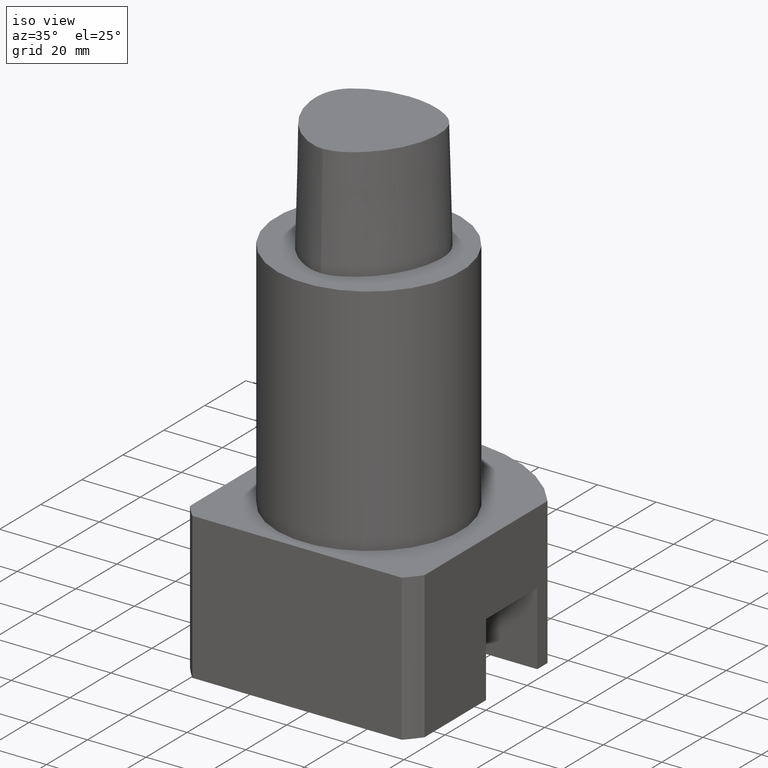
[diagram: clean part render]
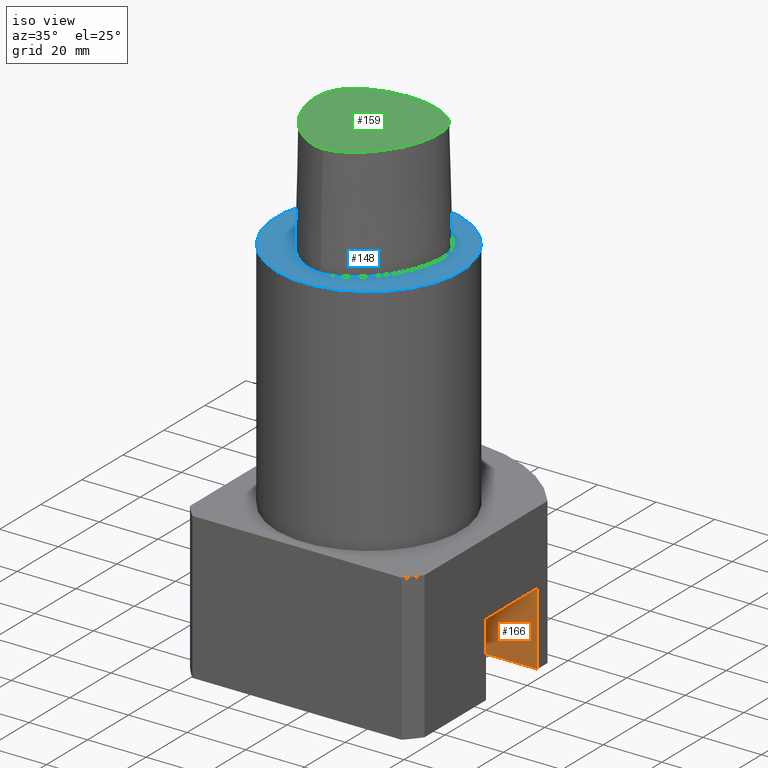
[diagram: same view with three faces highlighted in distinct colors, each labeled with its STEP entity id]
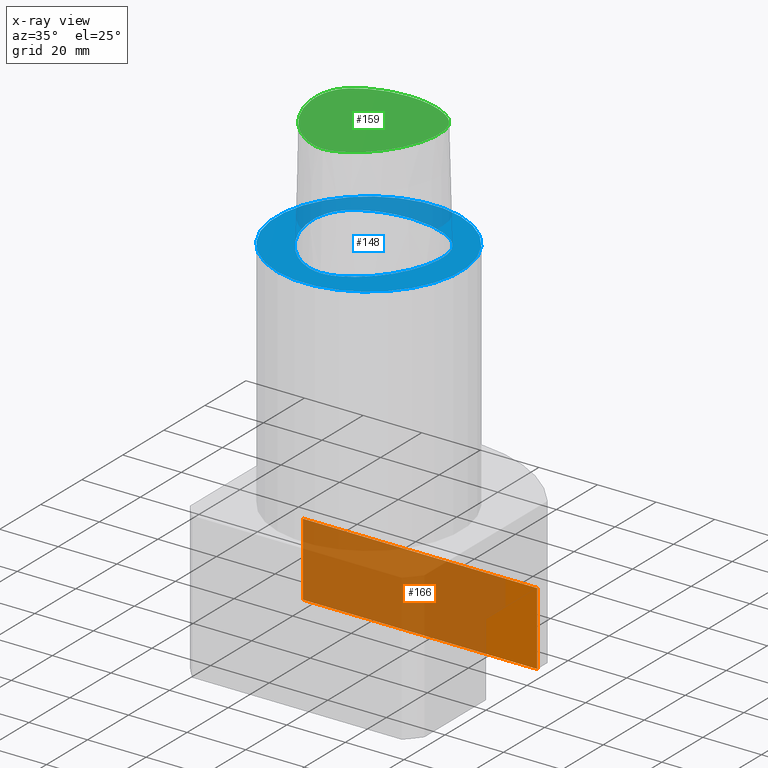
[diagram: x-ray of the same camera — body ghosted, the three highlighted faces saturated]
A machine part, iso view with three faces highlighted in distinct colors.
The next image is the same camera in x-ray (body ghosted, the three faces saturated) — at least one of them is partly hidden behind the body in this view.
Their STEP definitions:

[orange] entity #166 — the highlighted planar face has unit normal (0, 1, 0).
#83=EDGE_CURVE('240[2]',#236,#237,#238,.T.);
#154=EDGE_CURVE('240[2]',#249,#342,#343,.T.);
#166=ADVANCED_FACE('240[2]',(#358),#359,.F.);
#174=EDGE_CURVE('240[2]',#237,#249,#367,.T.);
#186=EDGE_CURVE('240[2]',#342,#236,#382,.T.);
#236=VERTEX_POINT('',#428);
#237=VERTEX_POINT('',#429);
#238=LINE('',#430,#431);
#249=VERTEX_POINT('',#446);
#342=VERTEX_POINT('',#732);
#343=LINE('',#733,#734);
#358=FACE_OUTER_BOUND('',#770,.T.);
#359=PLANE('',#771);
#367=LINE('',#802,#803);
#382=LINE('',#824,#825);
#428=CARTESIAN_POINT('',(39.9999999991092,24.9999999984574,-105.0));
#429=CARTESIAN_POINT('',(39.9999999991092,24.9999999984574,-130.0));
#430=CARTESIAN_POINT('',(39.9999999991092,24.9999999984574,-105.0));
#431=VECTOR('',#898,25.0);
#446=CARTESIAN_POINT('',(-40.0000000008908,24.9999999984573,-130.0));
#732=CARTESIAN_POINT('',(-40.0000000008908,24.9999999984574,-105.0));
#733=CARTESIAN_POINT('',(-40.0000000008908,24.9999999984573,-130.0));
#734=VECTOR('',#1011,25.0);
#770=EDGE_LOOP('',(#1023,#1024,#1025,#1026));
#771=AXIS2_PLACEMENT_3D('',#1027,#1028,#1029);
#802=CARTESIAN_POINT('',(39.9999999991092,24.9999999984574,-130.0));
#803=VECTOR('',#1032,80.0);
#824=CARTESIAN_POINT('',(-40.0000000008908,24.9999999984574,-105.0));
#825=VECTOR('',#1047,80.0);
#898=DIRECTION('',(0.0,0.0,-1.0));
#1011=DIRECTION('',(0.0,0.0,1.0));
#1023=ORIENTED_EDGE('',*,*,#83,.F.);
#1024=ORIENTED_EDGE('',*,*,#186,.F.);
#1025=ORIENTED_EDGE('',*,*,#154,.F.);
#1026=ORIENTED_EDGE('',*,*,#174,.F.);
#1027=CARTESIAN_POINT('',(-8.908216E-010,24.9999999984574,-130.0));
#1028=DIRECTION('',(0.0,1.0,0.0));
#1029=DIRECTION('',(1.0,0.0,-0.0));
#1032=DIRECTION('',(-1.0,0.0,0.0));
#1047=DIRECTION('',(1.0,0.0,0.0));

[blue] entity #148 — the highlighted planar face has unit normal (0, 0, 1).
#100=EDGE_CURVE('240[2]',#264,#241,#265,.T.);
#148=ADVANCED_FACE('240[2]',(#334,#335),#336,.T.);
#170=EDGE_CURVE('240[2]',#241,#330,#363,.T.);
#195=EDGE_CURVE('240[2]',#392,#392,#393,.T.);
#216=EDGE_CURVE('240[2]',#330,#264,#417,.T.);
#241=VERTEX_POINT('',#435);
#264=VERTEX_POINT('',#537);
#265=B_SPLINE_CURVE_WITH_KNOTS('',3,(#538,#539,#540,#541,#542,#543,#544,#545,#546,#547,#548,#549,#550,#551,#552,#553,#554),.UNSPECIFIED.,.F.,.F.,(4,1,1,1,1,1,1,1,1,1,1,1,1,1,4),(-13.2302678617486,-12.816821991069,-12.4033761203893,-11.9899302497097,-11.57648437903,-11.1630385083504,-10.9563155730106,-10.7495926376707,-10.3361467669911,-9.92270089631145,-9.09580915495216,-8.26891741359287,-7.44202567223358,-7.02857980155394,-6.6151339308743),.UNSPECIFIED.);
#330=VERTEX_POINT('',#715);
#334=FACE_OUTER_BOUND('',#721,.T.);
#335=FACE_BOUND('',#722,.T.);
#336=PLANE('',#723);
#363=B_SPLINE_CURVE_WITH_KNOTS('',3,(#778,#779,#780,#781,#782,#783,#784,#785,#786,#787,#788,#789,#790,#791,#792,#793,#794,#795),.UNSPECIFIED.,.F.,.F.,(4,1,1,1,1,1,1,1,1,2,1,1,1,1,4),(-6.6151339308743,-6.20168806019465,-5.78824218951501,-5.37479631883537,-4.96135044815572,-4.13445870679644,-3.30756696543715,-2.89412109475751,-2.48067522407786,-2.06722935339822,-1.65378348271857,-1.24033761203893,-0.826891741359287,-0.413445870679644,0.0),.UNSPECIFIED.);
#392=VERTEX_POINT('',#841);
#393=CIRCLE('',#842,31.5);
#417=CIRCLE('',#893,0.949936168493548);
#435=CARTESIAN_POINT('',(0.04359356758149,-23.4691235068931,0.0));
#537=CARTESIAN_POINT('',(0.044682985379347,20.6765087343109,0.0));
#538=CARTESIAN_POINT('',(0.044682985379347,20.6765087343109,0.0));
#539=CARTESIAN_POINT('',(1.42379272427753,20.6097915814392,0.0));
#540=CARTESIAN_POINT('',(4.2230955003445,20.4837538303966,0.0));
#541=CARTESIAN_POINT('',(8.47220762821777,19.6890432607088,0.0));
#542=CARTESIAN_POINT('',(12.5141247708253,18.2434968480404,0.0));
#543=CARTESIAN_POINT('',(16.3038624872874,16.1734192182143,0.0));
#544=CARTESIAN_POINT('',(19.1446913988473,13.7036723639434,0.0));
#545=CARTESIAN_POINT('',(20.7319894342149,11.1014620996188,0.0));
#546=CARTESIAN_POINT('',(21.7831756505763,8.28099229708081,0.0));
#547=CARTESIAN_POINT('',(22.2258240701438,4.60865440596506,0.0));
#548=CARTESIAN_POINT('',(21.7436130080666,-1.11326526354485,0.0));
#549=CARTESIAN_POINT('',(19.5519487660502,-7.95432366164584,0.0));
#550=CARTESIAN_POINT('',(14.9574167123838,-15.2089785567293,0.0));
#551=CARTESIAN_POINT('',(9.66840283021945,-20.0827414369705,0.0));
#552=CARTESIAN_POINT('',(4.51628650521788,-22.7946374572188,0.0));
#553=CARTESIAN_POINT('',(1.55867251738073,-23.4612972770043,0.0));
#554=CARTESIAN_POINT('',(0.04359356758149,-23.4691235068931,0.0));
#715=CARTESIAN_POINT('',(-0.045171994691285,20.6766009553285,0.0));
#721=EDGE_LOOP('',(#998));
#722=EDGE_LOOP('',(#999,#1000,#1001));
#723=AXIS2_PLACEMENT_3D('',#1002,#1003,#1004);
#778=CARTESIAN_POINT('',(0.04359356758149,-23.4691235068931,0.0));
#779=CARTESIAN_POINT('',(-1.4714994713963,-23.4767895315797,0.0));
#780=CARTESIAN_POINT('',(-4.43923476371401,-22.821149804767,0.0));
#781=CARTESIAN_POINT('',(-8.35043230079961,-20.8000751253325,0.0));
#782=CARTESIAN_POINT('',(-11.744900222602,-18.1556117874078,0.0));
#783=CARTESIAN_POINT('',(-15.6989602501314,-14.0406306929147,0.0));
#784=CARTESIAN_POINT('',(-19.5352875070682,-8.00624990770787,0.0));
#785=CARTESIAN_POINT('',(-21.7205626190491,-1.16081708945282,0.0));
#786=CARTESIAN_POINT('',(-22.2486616783342,4.54965558738736,0.0));
#787=CARTESIAN_POINT('',(-21.6646421256468,9.00229539124618,0.0));
#788=CARTESIAN_POINT('',(-20.3945635471922,11.7780544971003,0.0));
#789=CARTESIAN_POINT('',(-18.5925528034471,14.1980602922581,0.0));
#790=CARTESIAN_POINT('',(-16.3226584122258,16.1777748720707,0.0));
#791=CARTESIAN_POINT('',(-12.5076407874579,18.2524201541303,0.0));
#792=CARTESIAN_POINT('',(-8.46776192107786,19.679114377952,0.0));
#793=CARTESIAN_POINT('',(-4.23043497193604,20.487781597334,0.0));
#794=CARTESIAN_POINT('',(-1.42313094248379,20.6127745766442,0.0));
#795=CARTESIAN_POINT('',(-0.045171994691285,20.6766009553285,0.0));
#841=CARTESIAN_POINT('',(-22.2738636082671,22.2738636058336,0.0));
#842=AXIS2_PLACEMENT_3D('',#1058,#1059,#1060);
#893=AXIS2_PLACEMENT_3D('',#1093,#1094,#1095);
#998=ORIENTED_EDGE('',*,*,#195,.F.);
#999=ORIENTED_EDGE('',*,*,#100,.T.);
#1000=ORIENTED_EDGE('',*,*,#170,.T.);
#1001=ORIENTED_EDGE('',*,*,#216,.T.);
#1002=CARTESIAN_POINT('',(11.1342801523679,-11.1342801548013,0.0));
#1003=DIRECTION('',(0.0,0.0,1.0));
#1004=DIRECTION('',(1.0,-0.0,0.0));
#1058=CARTESIAN_POINT('',(-8.908216E-010,-1.542589E-009,0.0));
#1059=DIRECTION('',(0.0,0.0,-1.0));
#1060=DIRECTION('',(0.707106781186548,-0.707106781186547,0.0));
#1093=CARTESIAN_POINT('',(-0.001218547003662,19.7276821925089,0.0));
#1094=DIRECTION('',(0.0,0.0,-1.0));
#1095=DIRECTION('',(-0.046269895968506,0.99892897481606,0.0));

[green] entity #159 — the highlighted planar face has unit normal (0, 0, 1).
#156=EDGE_CURVE('240[2]',#240,#329,#345,.T.);
#159=ADVANCED_FACE('240[2]',(#348),#349,.T.);
#197=EDGE_CURVE('240[2]',#329,#240,#395,.T.);
#240=VERTEX_POINT('',#434);
#329=VERTEX_POINT('',#714);
#345=B_SPLINE_CURVE_WITH_KNOTS('',3,(#737,#738,#739,#740,#741,#742,#743,#744,#745,#746,#747,#748,#749,#750,#751,#752),.UNSPECIFIED.,.F.,.F.,(4,1,1,1,1,1,1,1,1,1,1,1,1,4),(6.61513393087489,6.99917207152274,7.48193246986995,7.96289324787093,8.45540287038584,9.10291653679981,9.67129810936083,10.1618749681153,10.6358867802489,11.1080734988593,11.6043706019633,12.09451993853,12.6985979284494,13.2302678617486),.UNSPECIFIED.);
#348=FACE_OUTER_BOUND('',#756,.T.);
#349=PLANE('',#757);
#395=B_SPLINE_CURVE_WITH_KNOTS('',3,(#845,#846,#847,#848,#849,#850,#851,#852,#853,#854,#855,#856,#857,#858,#859,#860),.UNSPECIFIED.,.F.,.F.,(4,1,1,1,1,1,1,1,1,1,1,1,1,4),(0.0,0.447924670568964,0.9388024242536,1.50591409090711,2.07314340012323,2.72424957442464,3.2253501842849,3.80982102049476,4.34867996267067,4.85900173381144,5.37972031856977,6.03459825488646,6.61113557741484,6.61513393087381),.UNSPECIFIED.);
#434=CARTESIAN_POINT('',(0.038736923393866,-22.5191997536361,38.0));
#714=CARTESIAN_POINT('',(-0.001218547003662,19.7276821925089,38.0));
#737=CARTESIAN_POINT('',(0.038736923394311,-22.519199753636,38.0));
#738=CARTESIAN_POINT('',(1.31742058183662,-22.512662269405,38.0));
#739=CARTESIAN_POINT('',(4.2093773447498,-21.9116226439989,38.0));
#740=CARTESIAN_POINT('',(8.20895504542113,-19.7798683845067,38.0));
#741=CARTESIAN_POINT('',(11.9784633234593,-16.681663904162,38.0));
#742=CARTESIAN_POINT('',(15.5308821579362,-12.5807487594113,38.0));
#743=CARTESIAN_POINT('',(18.4566248438667,-7.64932246015528,38.0));
#744=CARTESIAN_POINT('',(20.4036090752029,-2.27012499825289,38.0));
#745=CARTESIAN_POINT('',(21.2357187429189,2.79891401173156,38.0));
#746=CARTESIAN_POINT('',(21.0811206267748,7.62543090736657,38.0));
#747=CARTESIAN_POINT('',(19.3383577336563,12.2772250726194,38.0));
#748=CARTESIAN_POINT('',(15.5796322014404,15.5799672120682,38.0));
#749=CARTESIAN_POINT('',(10.8392956074438,17.9834601687347,38.0));
#750=CARTESIAN_POINT('',(5.56068045850571,19.4586143858472,38.0));
#751=CARTESIAN_POINT('',(1.77223893711014,19.6418877095654,38.0));
#752=CARTESIAN_POINT('',(-0.001218367817519,19.7276822012873,38.0));
#756=EDGE_LOOP('',(#1013,#1014));
#757=AXIS2_PLACEMENT_3D('',#1015,#1016,#1017);
#845=CARTESIAN_POINT('',(-0.001218547003662,19.7276821925089,38.0));
#846=CARTESIAN_POINT('',(-1.49408492138443,19.6585333605309,38.0));
#847=CARTESIAN_POINT('',(-4.62297391420352,19.513604770166,38.0));
#848=CARTESIAN_POINT('',(-9.56160616752212,18.4291575730197,38.0));
#849=CARTESIAN_POINT('',(-14.5427684976927,16.2697452580488,38.0));
#850=CARTESIAN_POINT('',(-19.4315563551602,12.5302108980807,38.0));
#851=CARTESIAN_POINT('',(-21.306358833612,6.76352894547076,38.0));
#852=CARTESIAN_POINT('',(-21.0724946936277,0.957075236984038,38.0));
#853=CARTESIAN_POINT('',(-19.7876470880144,-4.34628503581652,38.0));
#854=CARTESIAN_POINT('',(-17.5396999600095,-9.33314444653089,38.0));
#855=CARTESIAN_POINT('',(-14.645447733857,-13.7185760345629,38.0));
#856=CARTESIAN_POINT('',(-10.7996726536643,-17.856257282137,38.0));
#857=CARTESIAN_POINT('',(-6.00479510196376,-21.2687382067675,38.0));
#858=CARTESIAN_POINT('',(-1.90747171908525,-22.5250621415864,38.0));
#859=CARTESIAN_POINT('',(0.025424107066464,-22.5192678176378,38.0));
#860=CARTESIAN_POINT('',(0.038736923394311,-22.519199753636,38.0));
#1013=ORIENTED_EDGE('',*,*,#197,.T.);
#1014=ORIENTED_EDGE('',*,*,#156,.T.);
#1015=CARTESIAN_POINT('',(0.008647668684817,1.77491953635526,38.0));
#1016=DIRECTION('',(0.0,0.0,1.0));
#1017=DIRECTION('',(1.0,-0.0,0.0));